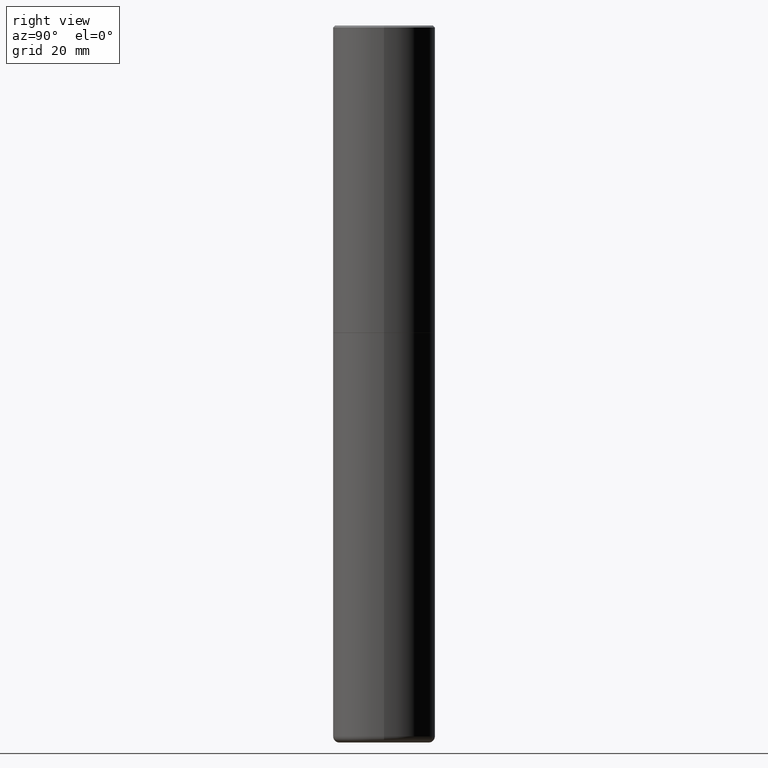
[diagram: clean part render]
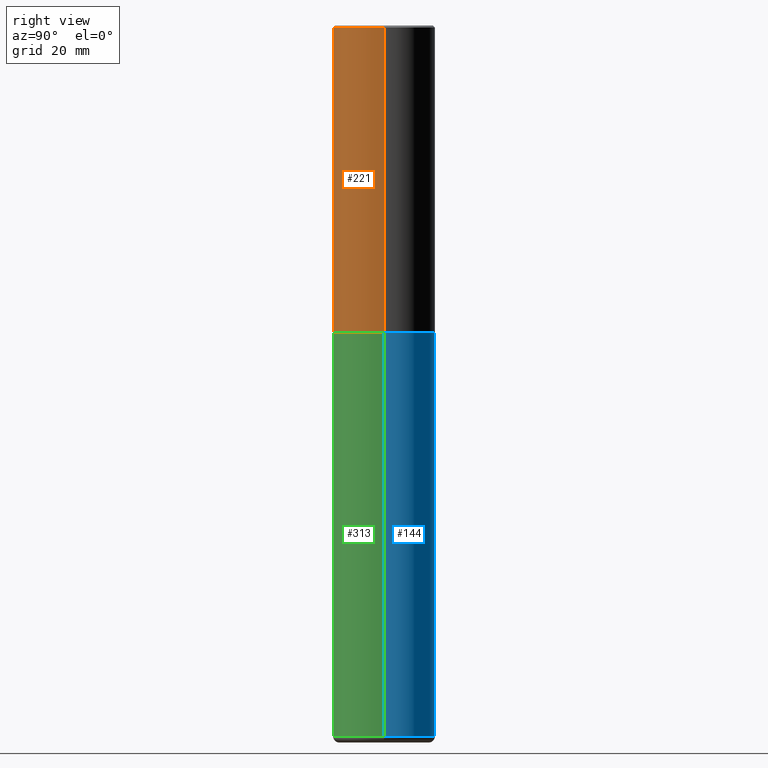
[diagram: same view with three faces highlighted in distinct colors, each labeled with its STEP entity id]
A machine part, right view with three faces highlighted in distinct colors.
Their STEP definitions:

[orange] entity #221 — the highlighted cylindrical surface (partial cylindrical patch) has radius 12.7 mm, axis along (-0, 0, 1).
#13 = ORIENTED_EDGE ( 'NONE', *, *, #153, .T. ) ;
#14 = CIRCLE ( 'NONE', #28, 0.5000000000000001110 ) ;
#27 = DIRECTION ( 'NONE',  ( 1.000000000000000000, -6.982962677686266711E-15, 4.876176775795935793E-29 ) ) ;
#28 = AXIS2_PLACEMENT_3D ( 'NONE', #211, #408, #248 ) ;
#35 = CARTESIAN_POINT ( 'NONE',  ( -0.5000000000000003331, -1.717677402183223054E-15, -2.999000000000000110 ) ) ;
#36 = DIRECTION ( 'NONE',  ( -2.445468806185136597E-29, 3.491481338843145583E-15, 1.000000000000000000 ) ) ;
#43 = CIRCLE ( 'NONE', #191, 0.5000000000000003331 ) ;
#52 = CARTESIAN_POINT ( 'NONE',  ( 0.5000000000000002220, -3.491481338843134933E-15, 2.438088387897969017E-29 ) ) ;
#75 = ORIENTED_EDGE ( 'NONE', *, *, #136, .F. ) ;
#93 = FACE_OUTER_BOUND ( 'NONE', #233, .T. ) ;
#106 = CARTESIAN_POINT ( 'NONE',  ( 0.5000000000000001110, -3.500078625662629868E-15, -0.02000000000000010797 ) ) ;
#133 = CARTESIAN_POINT ( 'NONE',  ( 7.333960949749225308E-29, -1.047095253519059177E-14, -2.999000000000000110 ) ) ;
#136 = EDGE_CURVE ( 'NONE', #235, #393, #14, .T. ) ;
#153 = EDGE_CURVE ( 'NONE', #361, #393, #312, .T. ) ;
#170 = CARTESIAN_POINT ( 'NONE',  ( -0.5000000000000002220, 3.552713678800502507E-15, -2.459467545127454012E-29 ) ) ;
#183 = DIRECTION ( 'NONE',  ( -2.445468806185136877E-29, 3.491481338843145188E-15, 1.000000000000000000 ) ) ;
#191 = AXIS2_PLACEMENT_3D ( 'NONE', #133, #36, #270 ) ;
#211 = CARTESIAN_POINT ( 'NONE',  ( 4.890937612370299433E-31, -6.982962677686328587E-17, -0.02000000000000010797 ) ) ;
#221 = ADVANCED_FACE ( 'NONE', ( #93 ), #256, .T. ) ;
#225 = CARTESIAN_POINT ( 'NONE',  ( -0.5000000000000001110, 3.421651712066270452E-15, -0.02000000000000010797 ) ) ;
#233 = EDGE_LOOP ( 'NONE', ( #418, #238, #13, #75 ) ) ;
#235 = VERTEX_POINT ( 'NONE', #225 ) ;
#238 = ORIENTED_EDGE ( 'NONE', *, *, #392, .T. ) ;
#248 = DIRECTION ( 'NONE',  ( 1.000000000000000000, -6.982962677686265922E-15, 0.000000000000000000 ) ) ;
#256 = CYLINDRICAL_SURFACE ( 'NONE', #275, 0.5000000000000002220 ) ;
#258 = VECTOR ( 'NONE', #183, 39.37007874015748143 ) ;
#261 = VERTEX_POINT ( 'NONE', #35 ) ;
#265 = DIRECTION ( 'NONE',  ( -2.445468806185136877E-29, 3.491481338843145188E-15, 1.000000000000000000 ) ) ;
#270 = DIRECTION ( 'NONE',  ( 1.000000000000000000, -6.982962677686265922E-15, 0.000000000000000000 ) ) ;
#275 = AXIS2_PLACEMENT_3D ( 'NONE', #315, #382, #27 ) ;
#312 = LINE ( 'NONE', #52, #258 ) ;
#315 = CARTESIAN_POINT ( 'NONE',  ( 0.000000000000000000, 0.000000000000000000, 0.000000000000000000 ) ) ;
#360 = CARTESIAN_POINT ( 'NONE',  ( 0.5000000000000003331, -1.396243387403372828E-14, -2.999000000000000110 ) ) ;
#361 = VERTEX_POINT ( 'NONE', #360 ) ;
#374 = VECTOR ( 'NONE', #265, 39.37007874015748143 ) ;
#376 = EDGE_CURVE ( 'NONE', #261, #235, #394, .T. ) ;
#382 = DIRECTION ( 'NONE',  ( -2.445468806185136597E-29, 3.491481338843145583E-15, 1.000000000000000000 ) ) ;
#392 = EDGE_CURVE ( 'NONE', #261, #361, #43, .T. ) ;
#393 = VERTEX_POINT ( 'NONE', #106 ) ;
#394 = LINE ( 'NONE', #170, #374 ) ;
#408 = DIRECTION ( 'NONE',  ( -2.445468806185136597E-29, 3.491481338843145583E-15, 1.000000000000000000 ) ) ;
#418 = ORIENTED_EDGE ( 'NONE', *, *, #376, .F. ) ;

[blue] entity #144 — the highlighted cylindrical surface (partial cylindrical patch) has radius 12.7 mm, axis along (-0, 0, 1).
#7 = LINE ( 'NONE', #264, #241 ) ;
#9 = EDGE_CURVE ( 'NONE', #353, #107, #7, .T. ) ;
#10 = ORIENTED_EDGE ( 'NONE', *, *, #332, .T. ) ;
#12 = CARTESIAN_POINT ( 'NONE',  ( -0.5000000000000002220, -2.067816681277092470E-14, -6.939999999999999503 ) ) ;
#30 = LINE ( 'NONE', #161, #276 ) ;
#34 = CIRCLE ( 'NONE', #320, 0.5000000000000000000 ) ;
#37 = ORIENTED_EDGE ( 'NONE', *, *, #9, .T. ) ;
#42 = DIRECTION ( 'NONE',  ( -2.445468806185136877E-29, 3.491481338843145188E-15, 1.000000000000000000 ) ) ;
#53 = DIRECTION ( 'NONE',  ( 1.000000000000000000, -6.982962677686266711E-15, 4.876176775795935793E-29 ) ) ;
#57 = CARTESIAN_POINT ( 'NONE',  ( 0.5000000000000002220, -2.772236183041456530E-14, -6.939999999999999503 ) ) ;
#62 = AXIS2_PLACEMENT_3D ( 'NONE', #111, #142, #53 ) ;
#64 = CARTESIAN_POINT ( 'NONE',  ( 7.336406418555408669E-29, -1.047444401652943478E-14, -2.999999999999999556 ) ) ;
#69 = ORIENTED_EDGE ( 'NONE', *, *, #280, .F. ) ;
#89 = DIRECTION ( 'NONE',  ( -2.445468806185136597E-29, 3.491481338843145583E-15, 1.000000000000000000 ) ) ;
#107 = VERTEX_POINT ( 'NONE', #151 ) ;
#111 = CARTESIAN_POINT ( 'NONE',  ( 0.000000000000000000, 0.000000000000000000, 0.000000000000000000 ) ) ;
#121 = CARTESIAN_POINT ( 'NONE',  ( 1.697155351492484915E-28, -2.423088049157142879E-14, -6.939999999999999503 ) ) ;
#134 = EDGE_LOOP ( 'NONE', ( #10, #37, #69, #298 ) ) ;
#142 = DIRECTION ( 'NONE',  ( -2.445468806185136597E-29, 3.491481338843145583E-15, 1.000000000000000000 ) ) ;
#144 = ADVANCED_FACE ( 'NONE', ( #218 ), #342, .T. ) ;
#151 = CARTESIAN_POINT ( 'NONE',  ( -0.5000000000000000000, -1.379994857524993085E-14, -2.999999999999999556 ) ) ;
#161 = CARTESIAN_POINT ( 'NONE',  ( 0.5000000000000000000, -3.491481338843133355E-15, 2.438088387897967896E-29 ) ) ;
#167 = AXIS2_PLACEMENT_3D ( 'NONE', #121, #89, #187 ) ;
#172 = VERTEX_POINT ( 'NONE', #247 ) ;
#187 = DIRECTION ( 'NONE',  ( 1.000000000000000000, -6.982962677686269077E-15, 0.000000000000000000 ) ) ;
#193 = DIRECTION ( 'NONE',  ( -2.445468806185136597E-29, 3.491481338843145583E-15, 1.000000000000000000 ) ) ;
#218 = FACE_OUTER_BOUND ( 'NONE', #134, .T. ) ;
#241 = VECTOR ( 'NONE', #42, 39.37007874015748143 ) ;
#247 = CARTESIAN_POINT ( 'NONE',  ( 0.5000000000000000000, -1.396592535537256813E-14, -2.999999999999999556 ) ) ;
#250 = DIRECTION ( 'NONE',  ( -2.445468806185136877E-29, 3.491481338843145188E-15, 1.000000000000000000 ) ) ;
#264 = CARTESIAN_POINT ( 'NONE',  ( -0.5000000000000000000, 3.552713678800500929E-15, -2.459467545127452891E-29 ) ) ;
#268 = CIRCLE ( 'NONE', #167, 0.5000000000000001110 ) ;
#276 = VECTOR ( 'NONE', #250, 39.37007874015748143 ) ;
#280 = EDGE_CURVE ( 'NONE', #172, #107, #34, .T. ) ;
#298 = ORIENTED_EDGE ( 'NONE', *, *, #304, .F. ) ;
#304 = EDGE_CURVE ( 'NONE', #305, #172, #30, .T. ) ;
#305 = VERTEX_POINT ( 'NONE', #57 ) ;
#320 = AXIS2_PLACEMENT_3D ( 'NONE', #64, #193, #415 ) ;
#332 = EDGE_CURVE ( 'NONE', #305, #353, #268, .T. ) ;
#342 = CYLINDRICAL_SURFACE ( 'NONE', #62, 0.5000000000000000000 ) ;
#353 = VERTEX_POINT ( 'NONE', #12 ) ;
#415 = DIRECTION ( 'NONE',  ( 1.000000000000000000, -6.982962677686266711E-15, 0.000000000000000000 ) ) ;

[green] entity #313 — the highlighted cylindrical surface (partial cylindrical patch) has radius 12.7 mm, axis along (-0, 0, 1).
#3 = DIRECTION ( 'NONE',  ( -2.445468806185136597E-29, 3.491481338843145583E-15, 1.000000000000000000 ) ) ;
#5 = AXIS2_PLACEMENT_3D ( 'NONE', #243, #178, #279 ) ;
#7 = LINE ( 'NONE', #264, #241 ) ;
#9 = EDGE_CURVE ( 'NONE', #353, #107, #7, .T. ) ;
#12 = CARTESIAN_POINT ( 'NONE',  ( -0.5000000000000002220, -2.067816681277092470E-14, -6.939999999999999503 ) ) ;
#21 = CIRCLE ( 'NONE', #71, 0.5000000000000000000 ) ;
#30 = LINE ( 'NONE', #161, #276 ) ;
#42 = DIRECTION ( 'NONE',  ( -2.445468806185136877E-29, 3.491481338843145188E-15, 1.000000000000000000 ) ) ;
#57 = CARTESIAN_POINT ( 'NONE',  ( 0.5000000000000002220, -2.772236183041456530E-14, -6.939999999999999503 ) ) ;
#71 = AXIS2_PLACEMENT_3D ( 'NONE', #127, #3, #318 ) ;
#78 = CIRCLE ( 'NONE', #5, 0.5000000000000001110 ) ;
#88 = ORIENTED_EDGE ( 'NONE', *, *, #158, .T. ) ;
#90 = AXIS2_PLACEMENT_3D ( 'NONE', #219, #383, #123 ) ;
#107 = VERTEX_POINT ( 'NONE', #151 ) ;
#120 = CYLINDRICAL_SURFACE ( 'NONE', #90, 0.5000000000000000000 ) ;
#123 = DIRECTION ( 'NONE',  ( 1.000000000000000000, -6.982962677686266711E-15, 4.876176775795935793E-29 ) ) ;
#127 = CARTESIAN_POINT ( 'NONE',  ( 7.336406418555408669E-29, -1.047444401652943478E-14, -2.999999999999999556 ) ) ;
#151 = CARTESIAN_POINT ( 'NONE',  ( -0.5000000000000000000, -1.379994857524993085E-14, -2.999999999999999556 ) ) ;
#158 = EDGE_CURVE ( 'NONE', #353, #305, #78, .T. ) ;
#161 = CARTESIAN_POINT ( 'NONE',  ( 0.5000000000000000000, -3.491481338843133355E-15, 2.438088387897967896E-29 ) ) ;
#166 = ORIENTED_EDGE ( 'NONE', *, *, #234, .F. ) ;
#169 = EDGE_LOOP ( 'NONE', ( #370, #88, #288, #166 ) ) ;
#172 = VERTEX_POINT ( 'NONE', #247 ) ;
#178 = DIRECTION ( 'NONE',  ( -2.445468806185136597E-29, 3.491481338843145583E-15, 1.000000000000000000 ) ) ;
#219 = CARTESIAN_POINT ( 'NONE',  ( 0.000000000000000000, 0.000000000000000000, 0.000000000000000000 ) ) ;
#234 = EDGE_CURVE ( 'NONE', #107, #172, #21, .T. ) ;
#241 = VECTOR ( 'NONE', #42, 39.37007874015748143 ) ;
#243 = CARTESIAN_POINT ( 'NONE',  ( 1.697155351492484915E-28, -2.423088049157142879E-14, -6.939999999999999503 ) ) ;
#247 = CARTESIAN_POINT ( 'NONE',  ( 0.5000000000000000000, -1.396592535537256813E-14, -2.999999999999999556 ) ) ;
#250 = DIRECTION ( 'NONE',  ( -2.445468806185136877E-29, 3.491481338843145188E-15, 1.000000000000000000 ) ) ;
#264 = CARTESIAN_POINT ( 'NONE',  ( -0.5000000000000000000, 3.552713678800500929E-15, -2.459467545127452891E-29 ) ) ;
#276 = VECTOR ( 'NONE', #250, 39.37007874015748143 ) ;
#279 = DIRECTION ( 'NONE',  ( 1.000000000000000000, -6.982962677686269077E-15, 0.000000000000000000 ) ) ;
#288 = ORIENTED_EDGE ( 'NONE', *, *, #304, .T. ) ;
#291 = FACE_OUTER_BOUND ( 'NONE', #169, .T. ) ;
#304 = EDGE_CURVE ( 'NONE', #305, #172, #30, .T. ) ;
#305 = VERTEX_POINT ( 'NONE', #57 ) ;
#313 = ADVANCED_FACE ( 'NONE', ( #291 ), #120, .T. ) ;
#318 = DIRECTION ( 'NONE',  ( 1.000000000000000000, -6.982962677686266711E-15, 0.000000000000000000 ) ) ;
#353 = VERTEX_POINT ( 'NONE', #12 ) ;
#370 = ORIENTED_EDGE ( 'NONE', *, *, #9, .F. ) ;
#383 = DIRECTION ( 'NONE',  ( -2.445468806185136597E-29, 3.491481338843145583E-15, 1.000000000000000000 ) ) ;